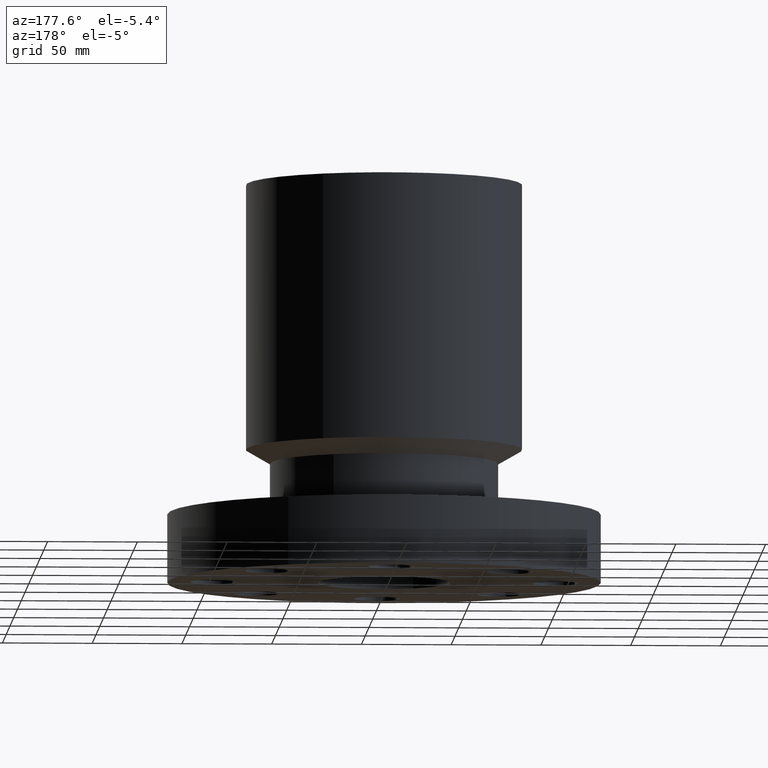
[diagram: clean part render]
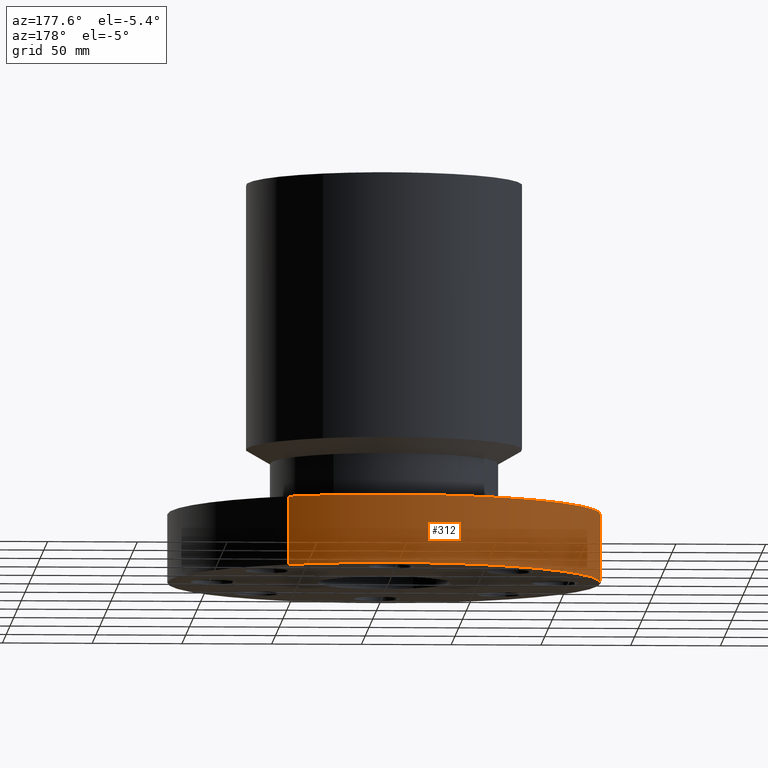
[diagram: same view with one face highlighted and labeled with its STEP entity id]
A machine part, auxiliary view. The second image highlights one B-rep face of the part: STEP entity #312.
In plain terms, the highlighted cylindrical surface (partial cylindrical patch) has radius 120.65 mm, axis along (0, 0, -1).
Its self-contained STEP definition (entity closure, byte-faithful):
#108=AXIS2_PLACEMENT_3D('Circle Axis2P3D',#106,#107,$) ;
#285=AXIS2_PLACEMENT_3D('Cylinder Axis2P3D',#282,#283,#284) ;
#289=AXIS2_PLACEMENT_3D('Circle Axis2P3D',#287,#288,$) ;
#101=CARTESIAN_POINT('Vertex',(2.27727130838,4.168517169,1.50000000001)) ;
#103=CARTESIAN_POINT('Vertex',(-2.27727130838,-4.168517169,1.50000000001)) ;
#106=CARTESIAN_POINT('Axis2P3D Location',(0.,0.,1.50000000001)) ;
#282=CARTESIAN_POINT('Axis2P3D Location',(0.,0.,4.25000000002)) ;
#287=CARTESIAN_POINT('Axis2P3D Location',(0.,0.,5.59482469102E-016)) ;
#291=CARTESIAN_POINT('Vertex',(-2.27727130838,-4.168517169,5.59482469102E-016)) ;
#293=CARTESIAN_POINT('Vertex',(2.27727130838,4.168517169,5.59482469102E-016)) ;
#296=CARTESIAN_POINT('Line Origine',(-2.27727130838,-4.168517169,0.750000000003)) ;
#301=CARTESIAN_POINT('Line Origine',(2.27727130838,4.168517169,0.750000000003)) ;
#107=DIRECTION('Axis2P3D Direction',(0.,0.,-0.0393700787402)) ;
#283=DIRECTION('Axis2P3D Direction',(0.,0.,-0.0393700787402)) ;
#284=DIRECTION('Axis2P3D XDirection',(0.0188750212049,0.0345504945626,0.)) ;
#288=DIRECTION('Axis2P3D Direction',(0.,0.,-0.0393700787402)) ;
#297=DIRECTION('Vector Direction',(0.,0.,-0.0393700787402)) ;
#302=DIRECTION('Vector Direction',(0.,0.,-0.0393700787402)) ;
#298=VECTOR('Line Direction',#297,0.0393700787402) ;
#303=VECTOR('Line Direction',#302,0.0393700787402) ;
#307=ORIENTED_EDGE('',*,*,#295,.F.) ;
#308=ORIENTED_EDGE('',*,*,#300,.T.) ;
#309=ORIENTED_EDGE('',*,*,#110,.T.) ;
#310=ORIENTED_EDGE('',*,*,#305,.F.) ;
#312=ADVANCED_FACE('PartBody',(#311),#286,.T.) ;
#109=CIRCLE('generated circle',#108,4.75000000002) ;
#290=CIRCLE('generated circle',#289,4.75000000002) ;
#286=CYLINDRICAL_SURFACE('generated cylinder',#285,4.75000000002) ;
#110=EDGE_CURVE('',#104,#102,#109,.T.) ;
#295=EDGE_CURVE('',#292,#294,#290,.T.) ;
#300=EDGE_CURVE('',#292,#104,#299,.F.) ;
#305=EDGE_CURVE('',#294,#102,#304,.F.) ;
#306=EDGE_LOOP('',(#307,#308,#309,#310)) ;
#311=FACE_OUTER_BOUND('',#306,.T.) ;
#299=LINE('Line',#296,#298) ;
#304=LINE('Line',#301,#303) ;
#102=VERTEX_POINT('',#101) ;
#104=VERTEX_POINT('',#103) ;
#292=VERTEX_POINT('',#291) ;
#294=VERTEX_POINT('',#293) ;